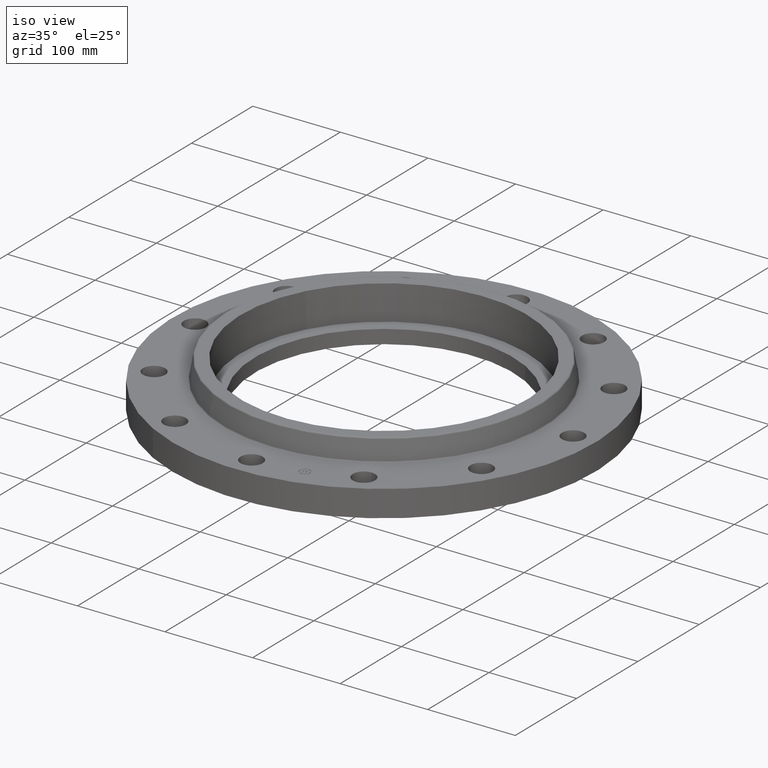
[diagram: clean part render]
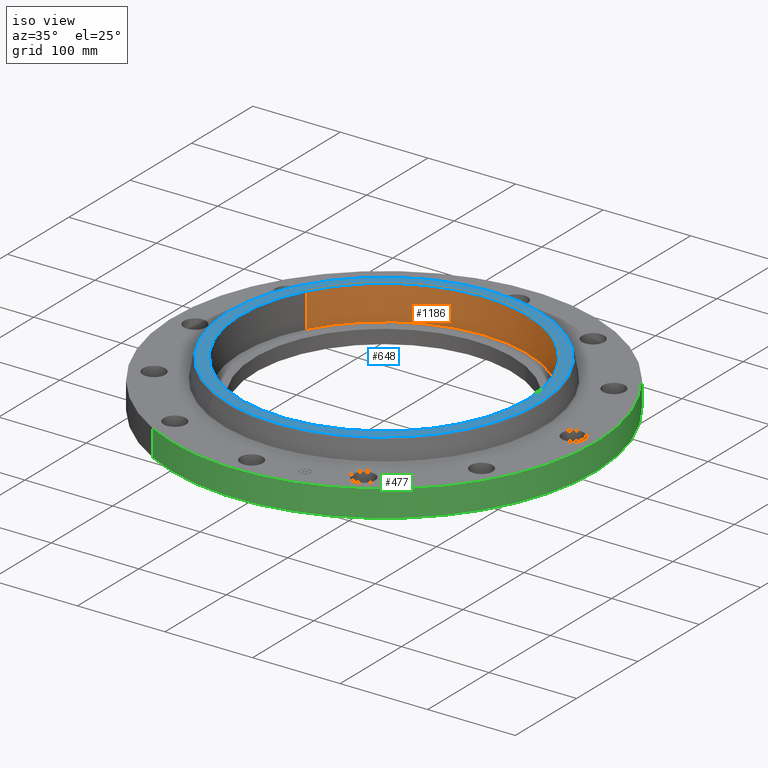
[diagram: same view with three faces highlighted in distinct colors, each labeled with its STEP entity id]
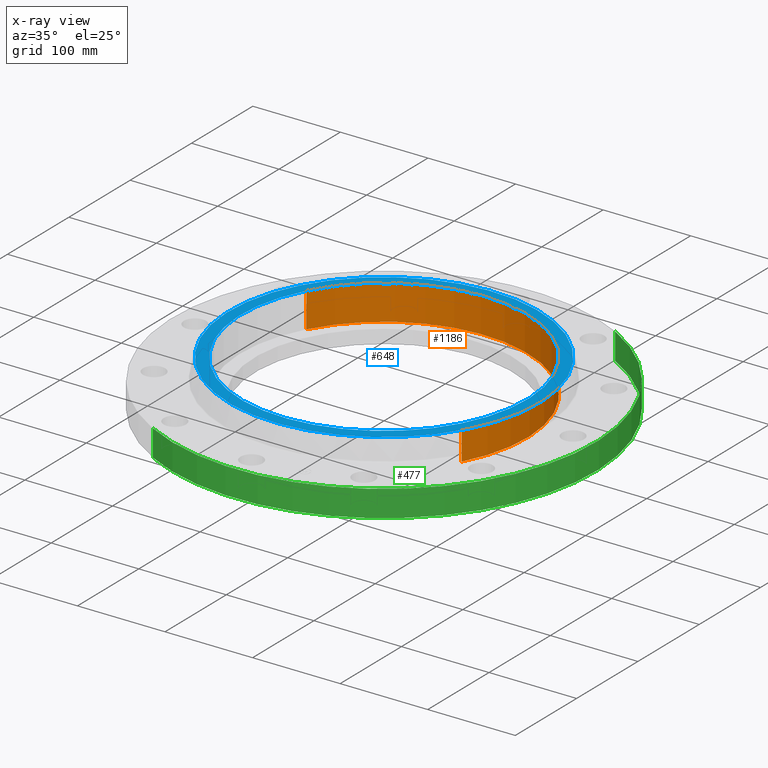
[diagram: x-ray of the same camera — body ghosted, the three highlighted faces saturated]
A machine part, iso view with three faces highlighted in distinct colors.
The next image is the same camera in x-ray (body ghosted, the three faces saturated) — at least one of them is partly hidden behind the body in this view.
Their STEP definitions:

[orange] entity #1186 — the highlighted cylindrical surface (partial cylindrical patch) has radius 163.576 mm, axis along (0, 0, -1).
#42=AXIS2_PLACEMENT_3D('Circle Axis2P3D',#40,#41,$) ;
#632=AXIS2_PLACEMENT_3D('Circle Axis2P3D',#630,#631,$) ;
#1168=AXIS2_PLACEMENT_3D('Cylinder Axis2P3D',#1165,#1166,#1167) ;
#40=CARTESIAN_POINT('Axis2P3D Location',(1.39870617276E-016,1.04902962957E-016,0.560000000002)) ;
#44=CARTESIAN_POINT('Vertex',(-5.6516316986,3.08750046862,0.560000000002)) ;
#46=CARTESIAN_POINT('Vertex',(5.6516316986,-3.08750046862,0.560000000002)) ;
#630=CARTESIAN_POINT('Axis2P3D Location',(-5.59482469102E-016,1.1189649382E-015,2.12000000001)) ;
#634=CARTESIAN_POINT('Vertex',(-5.6516316986,3.08750046862,2.12000000001)) ;
#636=CARTESIAN_POINT('Vertex',(5.6516316986,-3.08750046862,2.12000000001)) ;
#1165=CARTESIAN_POINT('Axis2P3D Location',(1.39870617276E-016,1.04902962957E-016,2.11606299213)) ;
#1170=CARTESIAN_POINT('Line Origine',(-5.6516316986,3.08750046862,1.34000000001)) ;
#1175=CARTESIAN_POINT('Line Origine',(5.6516316986,-3.08750046862,1.34000000001)) ;
#41=DIRECTION('Axis2P3D Direction',(0.,0.,-0.0393700787402)) ;
#631=DIRECTION('Axis2P3D Direction',(0.,0.,-0.0393700787402)) ;
#1166=DIRECTION('Axis2P3D Direction',(0.,0.,-0.0393700787402)) ;
#1167=DIRECTION('Axis2P3D XDirection',(0.0345504945626,-0.0188750212049,0.)) ;
#1171=DIRECTION('Vector Direction',(0.,0.,-0.0393700787402)) ;
#1176=DIRECTION('Vector Direction',(0.,0.,-0.0393700787402)) ;
#1172=VECTOR('Line Direction',#1171,0.0393700787402) ;
#1177=VECTOR('Line Direction',#1176,0.0393700787402) ;
#1181=ORIENTED_EDGE('',*,*,#638,.F.) ;
#1182=ORIENTED_EDGE('',*,*,#1174,.F.) ;
#1183=ORIENTED_EDGE('',*,*,#48,.T.) ;
#1184=ORIENTED_EDGE('',*,*,#1179,.T.) ;
#1186=ADVANCED_FACE('PartBody',(#1185),#1169,.F.) ;
#43=CIRCLE('generated circle',#42,6.44000000003) ;
#633=CIRCLE('generated circle',#632,6.44000000003) ;
#1169=CYLINDRICAL_SURFACE('generated cylinder',#1168,6.44000000003) ;
#48=EDGE_CURVE('',#45,#47,#43,.T.) ;
#638=EDGE_CURVE('',#635,#637,#633,.T.) ;
#1174=EDGE_CURVE('',#45,#635,#1173,.F.) ;
#1179=EDGE_CURVE('',#47,#637,#1178,.F.) ;
#1180=EDGE_LOOP('',(#1181,#1182,#1183,#1184)) ;
#1185=FACE_OUTER_BOUND('',#1180,.T.) ;
#1173=LINE('Line',#1170,#1172) ;
#1178=LINE('Line',#1175,#1177) ;
#45=VERTEX_POINT('',#44) ;
#47=VERTEX_POINT('',#46) ;
#635=VERTEX_POINT('',#634) ;
#637=VERTEX_POINT('',#636) ;

[blue] entity #648 — the highlighted planar face has unit normal (0, 0, -1).
#592=AXIS2_PLACEMENT_3D('Circle Axis2P3D',#590,#591,$) ;
#611=AXIS2_PLACEMENT_3D('Circle Axis2P3D',#609,#610,$) ;
#624=AXIS2_PLACEMENT_3D('Plane Axis2P3D',#621,#622,#623) ;
#632=AXIS2_PLACEMENT_3D('Circle Axis2P3D',#630,#631,$) ;
#641=AXIS2_PLACEMENT_3D('Circle Axis2P3D',#639,#640,$) ;
#587=CARTESIAN_POINT('Vertex',(3.34431431336,6.12172628816,2.12000000001)) ;
#590=CARTESIAN_POINT('Axis2P3D Location',(0.,0.,2.12000000001)) ;
#594=CARTESIAN_POINT('Vertex',(-3.34431431336,-6.12172628816,2.12000000001)) ;
#609=CARTESIAN_POINT('Axis2P3D Location',(0.,0.,2.12000000001)) ;
#621=CARTESIAN_POINT('Axis2P3D Location',(0.,6.9756699301,2.12000000001)) ;
#630=CARTESIAN_POINT('Axis2P3D Location',(-5.59482469102E-016,1.1189649382E-015,2.12000000001)) ;
#634=CARTESIAN_POINT('Vertex',(-5.6516316986,3.08750046862,2.12000000001)) ;
#636=CARTESIAN_POINT('Vertex',(5.6516316986,-3.08750046862,2.12000000001)) ;
#639=CARTESIAN_POINT('Axis2P3D Location',(2.79741234551E-016,1.1189649382E-015,2.12000000001)) ;
#591=DIRECTION('Axis2P3D Direction',(0.,0.,-0.0393700787402)) ;
#610=DIRECTION('Axis2P3D Direction',(0.,0.,-0.0393700787402)) ;
#622=DIRECTION('Axis2P3D Direction',(0.,0.,-0.0393700787402)) ;
#623=DIRECTION('Axis2P3D XDirection',(0.0393700787402,0.,0.)) ;
#631=DIRECTION('Axis2P3D Direction',(0.,0.,-0.0393700787402)) ;
#640=DIRECTION('Axis2P3D Direction',(0.,0.,-0.0393700787402)) ;
#627=ORIENTED_EDGE('',*,*,#596,.F.) ;
#628=ORIENTED_EDGE('',*,*,#613,.F.) ;
#645=ORIENTED_EDGE('',*,*,#638,.T.) ;
#646=ORIENTED_EDGE('',*,*,#643,.T.) ;
#647=FACE_BOUND('',#644,.T.) ;
#648=ADVANCED_FACE('PartBody',(#629,#647),#625,.F.) ;
#593=CIRCLE('generated circle',#592,6.9756699301) ;
#612=CIRCLE('generated circle',#611,6.9756699301) ;
#633=CIRCLE('generated circle',#632,6.44000000003) ;
#642=CIRCLE('generated circle',#641,6.44000000003) ;
#596=EDGE_CURVE('',#588,#595,#593,.T.) ;
#613=EDGE_CURVE('',#595,#588,#612,.T.) ;
#638=EDGE_CURVE('',#635,#637,#633,.T.) ;
#643=EDGE_CURVE('',#637,#635,#642,.T.) ;
#626=EDGE_LOOP('',(#627,#628)) ;
#644=EDGE_LOOP('',(#645,#646)) ;
#629=FACE_OUTER_BOUND('',#626,.T.) ;
#625=PLANE('',#624) ;
#588=VERTEX_POINT('',#587) ;
#595=VERTEX_POINT('',#594) ;
#635=VERTEX_POINT('',#634) ;
#637=VERTEX_POINT('',#636) ;

[green] entity #477 — the highlighted cylindrical surface (partial cylindrical patch) has radius 241.3 mm, axis along (0, 0, -1).
#207=AXIS2_PLACEMENT_3D('Circle Axis2P3D',#205,#206,$) ;
#438=AXIS2_PLACEMENT_3D('Cylinder Axis2P3D',#435,#436,#437) ;
#468=AXIS2_PLACEMENT_3D('Circle Axis2P3D',#466,#467,$) ;
#200=CARTESIAN_POINT('Vertex',(-4.55454261676,-8.33703433799,9.79094320929E-016)) ;
#202=CARTESIAN_POINT('Vertex',(4.55454261676,8.33703433799,9.79094320929E-016)) ;
#205=CARTESIAN_POINT('Axis2P3D Location',(0.,0.,0.)) ;
#435=CARTESIAN_POINT('Axis2P3D Location',(0.,0.,1.02875)) ;
#440=CARTESIAN_POINT('Line Origine',(-4.55454261676,-8.33703433799,0.595000000002)) ;
#444=CARTESIAN_POINT('Vertex',(-4.55454261676,-8.33703433799,1.19)) ;
#451=CARTESIAN_POINT('Vertex',(4.55454261676,8.33703433799,1.19)) ;
#454=CARTESIAN_POINT('Line Origine',(4.55454261676,8.33703433799,0.595000000002)) ;
#466=CARTESIAN_POINT('Axis2P3D Location',(0.,0.,1.19)) ;
#206=DIRECTION('Axis2P3D Direction',(0.,0.,-0.0393700787402)) ;
#436=DIRECTION('Axis2P3D Direction',(0.,0.,-0.0393700787402)) ;
#437=DIRECTION('Axis2P3D XDirection',(0.0188750212049,0.0345504945626,0.)) ;
#441=DIRECTION('Vector Direction',(0.,0.,-0.0393700787402)) ;
#455=DIRECTION('Vector Direction',(0.,0.,-0.0393700787402)) ;
#467=DIRECTION('Axis2P3D Direction',(0.,0.,-0.0393700787402)) ;
#442=VECTOR('Line Direction',#441,0.0393700787402) ;
#456=VECTOR('Line Direction',#455,0.0393700787402) ;
#472=ORIENTED_EDGE('',*,*,#209,.F.) ;
#473=ORIENTED_EDGE('',*,*,#458,.T.) ;
#474=ORIENTED_EDGE('',*,*,#470,.T.) ;
#475=ORIENTED_EDGE('',*,*,#446,.F.) ;
#477=ADVANCED_FACE('PartBody',(#476),#439,.T.) ;
#208=CIRCLE('generated circle',#207,9.50000000004) ;
#469=CIRCLE('generated circle',#468,9.50000000004) ;
#439=CYLINDRICAL_SURFACE('generated cylinder',#438,9.50000000004) ;
#209=EDGE_CURVE('',#203,#201,#208,.T.) ;
#446=EDGE_CURVE('',#201,#445,#443,.F.) ;
#458=EDGE_CURVE('',#203,#452,#457,.F.) ;
#470=EDGE_CURVE('',#452,#445,#469,.T.) ;
#471=EDGE_LOOP('',(#472,#473,#474,#475)) ;
#476=FACE_OUTER_BOUND('',#471,.T.) ;
#443=LINE('Line',#440,#442) ;
#457=LINE('Line',#454,#456) ;
#201=VERTEX_POINT('',#200) ;
#203=VERTEX_POINT('',#202) ;
#445=VERTEX_POINT('',#444) ;
#452=VERTEX_POINT('',#451) ;